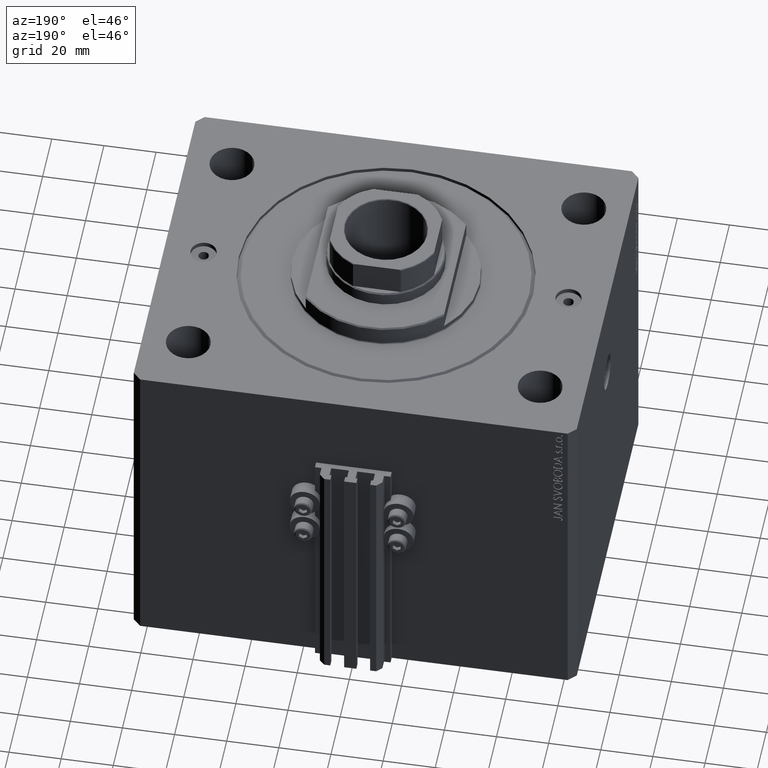
[diagram: clean part render]
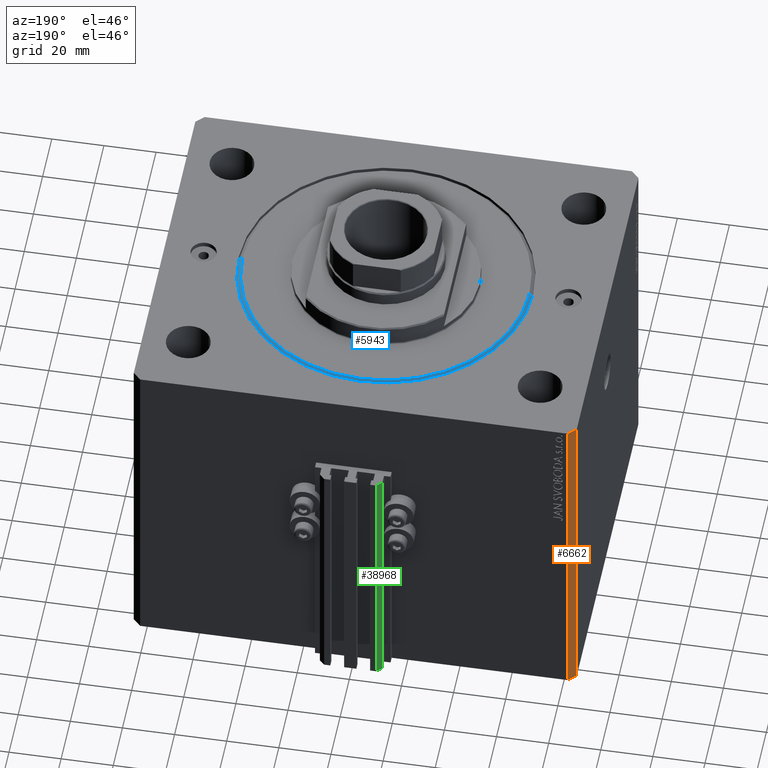
[diagram: same view with three faces highlighted in distinct colors, each labeled with its STEP entity id]
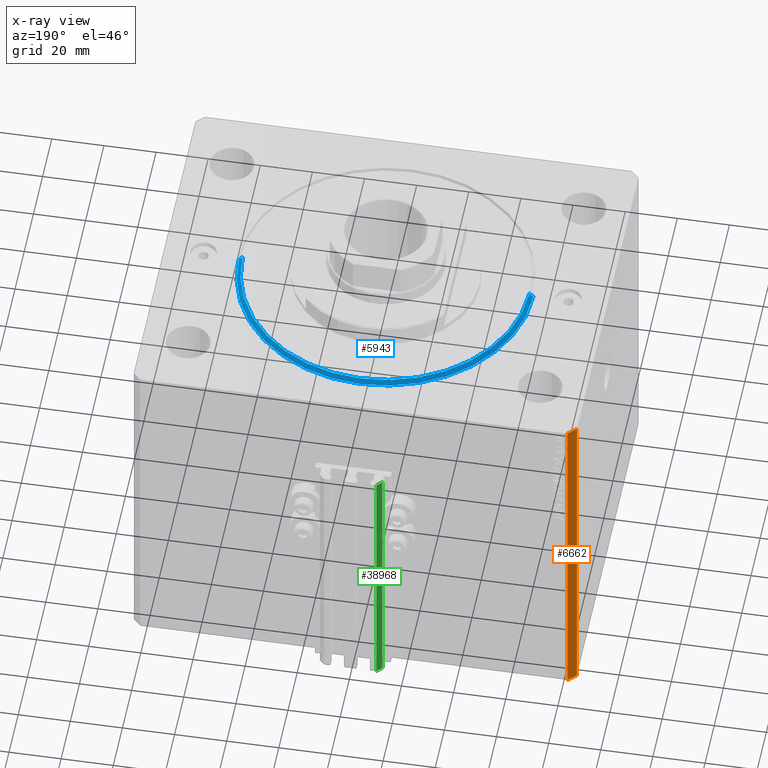
[diagram: x-ray of the same camera — body ghosted, the three highlighted faces saturated]
A machine part, auxiliary view with three faces highlighted in distinct colors.
The next image is the same camera in x-ray (body ghosted, the three faces saturated) — at least one of them is partly hidden behind the body in this view.
Their STEP definitions:

[orange] entity #6662 — the highlighted planar face has unit normal (-0.7071, 0.7071, 0).
#284 = EDGE_CURVE ( 'NONE', #38803, #33189, #24732, .T. ) ;
#2902 = AXIS2_PLACEMENT_3D ( 'NONE', #25479, #43884, #14058 ) ;
#6401 = CARTESIAN_POINT ( 'NONE',  ( -85.00000000000001421, 67.00000000000001421, -134.0000000000000000 ) ) ;
#6662 = ADVANCED_FACE ( 'NONE', ( #43421 ), #10949, .T. ) ;
#7051 = VECTOR ( 'NONE', #35996, 1000.000000000000000 ) ;
#10406 = LINE ( 'NONE', #43354, #46126 ) ;
#10773 = CARTESIAN_POINT ( 'NONE',  ( -82.00000000000000000, 70.00000000000000000, 0.000000000000000000 ) ) ;
#10949 = PLANE ( 'NONE',  #2902 ) ;
#12673 = VERTEX_POINT ( 'NONE', #20605 ) ;
#13312 = DIRECTION ( 'NONE',  ( -0.7071067811865507924, -0.7071067811865441310, 0.000000000000000000 ) ) ;
#14058 = DIRECTION ( 'NONE',  ( -0.7071067811865507924, -0.7071067811865441310, 0.000000000000000000 ) ) ;
#17664 = VECTOR ( 'NONE', #13312, 1000.000000000000114 ) ;
#20605 = CARTESIAN_POINT ( 'NONE',  ( -85.00000000000001421, 67.00000000000001421, 0.000000000000000000 ) ) ;
#21996 = EDGE_CURVE ( 'NONE', #33189, #12673, #39099, .T. ) ;
#24732 = LINE ( 'NONE', #38598, #17664 ) ;
#25479 = CARTESIAN_POINT ( 'NONE',  ( -82.00000000000000000, 70.00000000000000000, -134.0000000000000000 ) ) ;
#25692 = EDGE_CURVE ( 'NONE', #38803, #31183, #32323, .T. ) ;
#26205 = EDGE_LOOP ( 'NONE', ( #37528, #45729, #34161, #41025 ) ) ;
#28710 = CARTESIAN_POINT ( 'NONE',  ( -82.00000000000000000, 70.00000000000000000, -134.0000000000000000 ) ) ;
#29689 = EDGE_CURVE ( 'NONE', #31183, #12673, #10406, .T. ) ;
#31183 = VERTEX_POINT ( 'NONE', #10773 ) ;
#32323 = LINE ( 'NONE', #43322, #42214 ) ;
#33189 = VERTEX_POINT ( 'NONE', #36835 ) ;
#34161 = ORIENTED_EDGE ( 'NONE', *, *, #284, .T. ) ;
#35925 = DIRECTION ( 'NONE',  ( 0.000000000000000000, 0.000000000000000000, 1.000000000000000000 ) ) ;
#35996 = DIRECTION ( 'NONE',  ( 0.000000000000000000, 0.000000000000000000, 1.000000000000000000 ) ) ;
#36835 = CARTESIAN_POINT ( 'NONE',  ( -85.00000000000001421, 67.00000000000001421, -134.0000000000000000 ) ) ;
#37528 = ORIENTED_EDGE ( 'NONE', *, *, #29689, .F. ) ;
#38598 = CARTESIAN_POINT ( 'NONE',  ( -82.00000000000000000, 70.00000000000000000, -134.0000000000000000 ) ) ;
#38803 = VERTEX_POINT ( 'NONE', #28710 ) ;
#39099 = LINE ( 'NONE', #6401, #7051 ) ;
#39779 = DIRECTION ( 'NONE',  ( -0.7071067811865507924, -0.7071067811865441310, 0.000000000000000000 ) ) ;
#41025 = ORIENTED_EDGE ( 'NONE', *, *, #21996, .T. ) ;
#42214 = VECTOR ( 'NONE', #35925, 1000.000000000000000 ) ;
#43322 = CARTESIAN_POINT ( 'NONE',  ( -82.00000000000000000, 70.00000000000000000, -134.0000000000000000 ) ) ;
#43354 = CARTESIAN_POINT ( 'NONE',  ( -82.00000000000000000, 70.00000000000000000, 0.000000000000000000 ) ) ;
#43421 = FACE_OUTER_BOUND ( 'NONE', #26205, .T. ) ;
#43884 = DIRECTION ( 'NONE',  ( -0.7071067811865442421, 0.7071067811865509034, 0.000000000000000000 ) ) ;
#45729 = ORIENTED_EDGE ( 'NONE', *, *, #25692, .F. ) ;
#46126 = VECTOR ( 'NONE', #39779, 1000.000000000000114 ) ;

[blue] entity #5943 — the highlighted conical surface has half-angle 45 deg.
#2351 = VECTOR ( 'NONE', #22100, 1000.000000000000000 ) ;
#2750 = VERTEX_POINT ( 'NONE', #38249 ) ;
#3919 = DIRECTION ( 'NONE',  ( -0.000000000000000000, -0.000000000000000000, -1.000000000000000000 ) ) ;
#4963 = DIRECTION ( 'NONE',  ( -0.000000000000000000, -0.000000000000000000, 1.000000000000000000 ) ) ;
#5943 = ADVANCED_FACE ( 'NONE', ( #7827 ), #10504, .T. ) ;
#6209 = CARTESIAN_POINT ( 'NONE',  ( -56.50000000000000711, 0.000000000000000000, 1.499999999999994449 ) ) ;
#7827 = FACE_OUTER_BOUND ( 'NONE', #11952, .T. ) ;
#9230 = VERTEX_POINT ( 'NONE', #34162 ) ;
#10504 = CONICAL_SURFACE ( 'NONE', #15066, 56.50000000000000711, 0.7853981633974460586 ) ;
#10895 = AXIS2_PLACEMENT_3D ( 'NONE', #17977, #11044, #32984 ) ;
#11044 = DIRECTION ( 'NONE',  ( -0.000000000000000000, -0.000000000000000000, 1.000000000000000000 ) ) ;
#11952 = EDGE_LOOP ( 'NONE', ( #35699, #22976, #19462, #31598 ) ) ;
#14097 = CARTESIAN_POINT ( 'NONE',  ( -56.50000000000000711, 6.919254415182546126E-15, 1.499999999999994449 ) ) ;
#14418 = EDGE_CURVE ( 'NONE', #9230, #33794, #43378, .T. ) ;
#15066 = AXIS2_PLACEMENT_3D ( 'NONE', #33829, #4963, #40779 ) ;
#17977 = CARTESIAN_POINT ( 'NONE',  ( 0.000000000000000000, 0.000000000000000000, 1.499999999999994449 ) ) ;
#19462 = ORIENTED_EDGE ( 'NONE', *, *, #23745, .F. ) ;
#20293 = EDGE_CURVE ( 'NONE', #2750, #9230, #32223, .T. ) ;
#22100 = DIRECTION ( 'NONE',  ( 0.7071067811865459074, 0.000000000000000000, 0.7071067811865491270 ) ) ;
#22759 = EDGE_CURVE ( 'NONE', #2750, #25965, #28393, .T. ) ;
#22976 = ORIENTED_EDGE ( 'NONE', *, *, #22759, .T. ) ;
#23745 = EDGE_CURVE ( 'NONE', #33794, #25965, #33755, .T. ) ;
#25965 = VERTEX_POINT ( 'NONE', #6209 ) ;
#26852 = VECTOR ( 'NONE', #42992, 1000.000000000000000 ) ;
#28393 = LINE ( 'NONE', #14097, #26852 ) ;
#29663 = DIRECTION ( 'NONE',  ( 1.000000000000000000, 0.000000000000000000, 0.000000000000000000 ) ) ;
#31598 = ORIENTED_EDGE ( 'NONE', *, *, #14418, .F. ) ;
#32223 = CIRCLE ( 'NONE', #45223, 55.00000000000002132 ) ;
#32984 = DIRECTION ( 'NONE',  ( 1.000000000000000000, 0.000000000000000000, 0.000000000000000000 ) ) ;
#33755 = CIRCLE ( 'NONE', #10895, 56.50000000000000711 ) ;
#33794 = VERTEX_POINT ( 'NONE', #43412 ) ;
#33829 = CARTESIAN_POINT ( 'NONE',  ( 0.000000000000000000, 0.000000000000000000, 1.499999999999994449 ) ) ;
#34162 = CARTESIAN_POINT ( 'NONE',  ( 55.00000000000002132, 0.000000000000000000, 0.000000000000000000 ) ) ;
#35699 = ORIENTED_EDGE ( 'NONE', *, *, #20293, .F. ) ;
#36621 = CARTESIAN_POINT ( 'NONE',  ( 0.000000000000000000, 0.000000000000000000, 0.000000000000000000 ) ) ;
#38249 = CARTESIAN_POINT ( 'NONE',  ( -55.00000000000002132, 6.827405905246496343E-15, 0.000000000000000000 ) ) ;
#40779 = DIRECTION ( 'NONE',  ( 1.000000000000000000, 0.000000000000000000, 0.000000000000000000 ) ) ;
#42992 = DIRECTION ( 'NONE',  ( -0.7071067811865459074, 8.659560562354911904E-17, 0.7071067811865491270 ) ) ;
#43378 = LINE ( 'NONE', #46723, #2351 ) ;
#43412 = CARTESIAN_POINT ( 'NONE',  ( 56.50000000000000711, 6.919254415182546126E-15, 1.499999999999994449 ) ) ;
#45223 = AXIS2_PLACEMENT_3D ( 'NONE', #36621, #3919, #29663 ) ;
#46723 = CARTESIAN_POINT ( 'NONE',  ( 56.50000000000000711, 0.000000000000000000, 1.499999999999994449 ) ) ;

[green] entity #38968 — the highlighted planar face has unit normal (-0.7071, 0.7071, 0).
#1965 = CARTESIAN_POINT ( 'NONE',  ( -10.00000000000000000, 78.00000000000001421, -134.0000000000000000 ) ) ;
#5297 = DIRECTION ( 'NONE',  ( -0.7071067811865446862, -0.7071067811865503483, 0.000000000000000000 ) ) ;
#5549 = DIRECTION ( 'NONE',  ( -0.7071067811865503483, 0.7071067811865446862, 0.000000000000000000 ) ) ;
#7403 = ORIENTED_EDGE ( 'NONE', *, *, #46694, .F. ) ;
#10067 = DIRECTION ( 'NONE',  ( -0.7071067811865446862, -0.7071067811865503483, 0.000000000000000000 ) ) ;
#12985 = CARTESIAN_POINT ( 'NONE',  ( -12.00000000000000000, 76.00000000000000000, -33.00000000000000000 ) ) ;
#13265 = CARTESIAN_POINT ( 'NONE',  ( -12.00000000000000000, 76.00000000000000000, -134.0000000000000000 ) ) ;
#13389 = LINE ( 'NONE', #38447, #29272 ) ;
#13658 = LINE ( 'NONE', #31771, #23809 ) ;
#14200 = VERTEX_POINT ( 'NONE', #41034 ) ;
#14525 = ORIENTED_EDGE ( 'NONE', *, *, #26944, .T. ) ;
#15321 = LINE ( 'NONE', #15785, #20503 ) ;
#15785 = CARTESIAN_POINT ( 'NONE',  ( -10.00000000000000000, 78.00000000000001421, -33.00000000000000000 ) ) ;
#16515 = FACE_OUTER_BOUND ( 'NONE', #31649, .T. ) ;
#17158 = VECTOR ( 'NONE', #37237, 1000.000000000000000 ) ;
#18005 = VERTEX_POINT ( 'NONE', #12985 ) ;
#19735 = ORIENTED_EDGE ( 'NONE', *, *, #29269, .F. ) ;
#20011 = CARTESIAN_POINT ( 'NONE',  ( -10.00000000000000000, 78.00000000000001421, -134.0000000000000000 ) ) ;
#20474 = EDGE_CURVE ( 'NONE', #46953, #18005, #13658, .T. ) ;
#20503 = VECTOR ( 'NONE', #37969, 1000.000000000000114 ) ;
#23809 = VECTOR ( 'NONE', #38475, 1000.000000000000000 ) ;
#26944 = EDGE_CURVE ( 'NONE', #14200, #46953, #13389, .T. ) ;
#29269 = EDGE_CURVE ( 'NONE', #14200, #44029, #30752, .T. ) ;
#29272 = VECTOR ( 'NONE', #5297, 1000.000000000000114 ) ;
#30752 = LINE ( 'NONE', #20011, #17158 ) ;
#31649 = EDGE_LOOP ( 'NONE', ( #7403, #19735, #14525, #44969 ) ) ;
#31771 = CARTESIAN_POINT ( 'NONE',  ( -12.00000000000000000, 76.00000000000000000, -134.0000000000000000 ) ) ;
#34784 = CARTESIAN_POINT ( 'NONE',  ( -10.00000000000000000, 78.00000000000001421, -33.00000000000000000 ) ) ;
#37237 = DIRECTION ( 'NONE',  ( 0.000000000000000000, 0.000000000000000000, 1.000000000000000000 ) ) ;
#37969 = DIRECTION ( 'NONE',  ( -0.7071067811865446862, -0.7071067811865503483, 0.000000000000000000 ) ) ;
#38447 = CARTESIAN_POINT ( 'NONE',  ( -10.00000000000000000, 78.00000000000001421, -134.0000000000000000 ) ) ;
#38475 = DIRECTION ( 'NONE',  ( 0.000000000000000000, 0.000000000000000000, 1.000000000000000000 ) ) ;
#38748 = AXIS2_PLACEMENT_3D ( 'NONE', #1965, #5549, #10067 ) ;
#38968 = ADVANCED_FACE ( 'NONE', ( #16515 ), #45882, .T. ) ;
#41034 = CARTESIAN_POINT ( 'NONE',  ( -10.00000000000000000, 78.00000000000001421, -134.0000000000000000 ) ) ;
#44029 = VERTEX_POINT ( 'NONE', #34784 ) ;
#44969 = ORIENTED_EDGE ( 'NONE', *, *, #20474, .T. ) ;
#45882 = PLANE ( 'NONE',  #38748 ) ;
#46694 = EDGE_CURVE ( 'NONE', #44029, #18005, #15321, .T. ) ;
#46953 = VERTEX_POINT ( 'NONE', #13265 ) ;